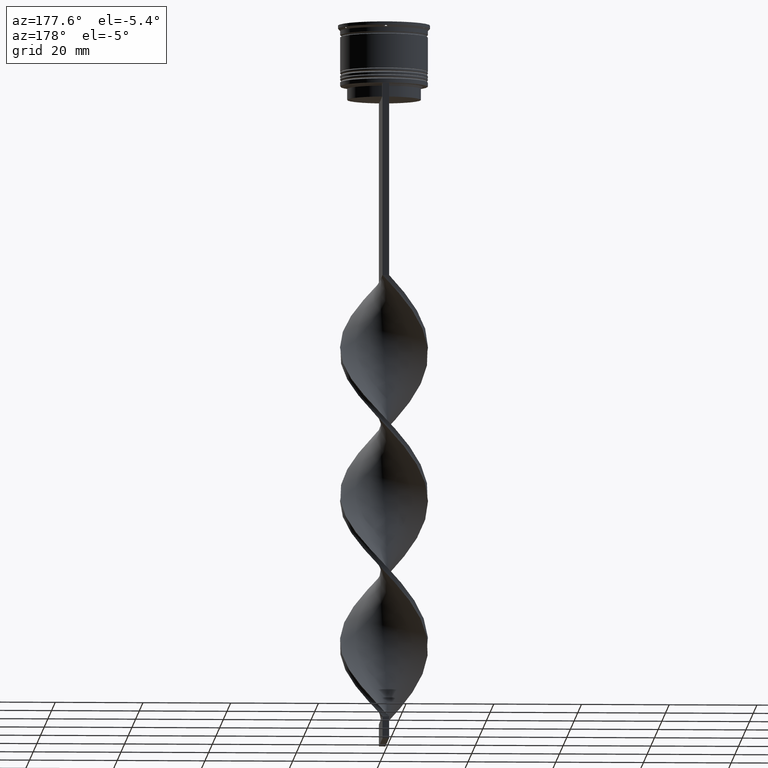
[diagram: clean part render]
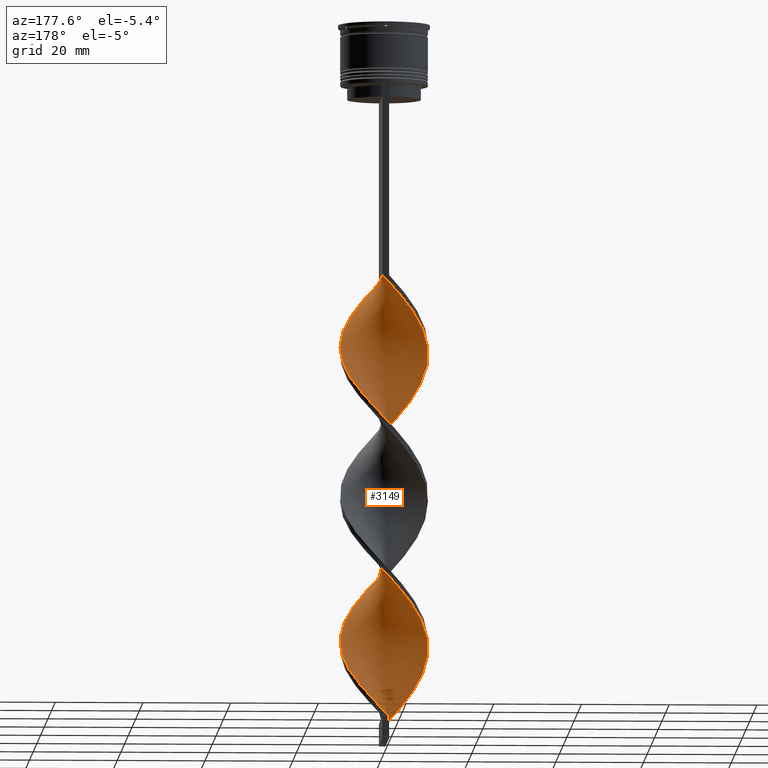
[diagram: same view with one face highlighted and labeled with its STEP entity id]
A machine part, auxiliary view. The second image highlights one B-rep face of the part: STEP entity #3149.
In plain terms, the highlighted face is a freeform B-spline surface patch.
Its self-contained STEP definition (entity closure, byte-faithful):
#4 = CARTESIAN_POINT ( 'NONE',  ( -7.288592354231109738, 6.967770475720659107, -99.52222222222223991 ) ) ;
#5 = CARTESIAN_POINT ( 'NONE',  ( 7.691465658176944054, -6.520334342467822175, -101.7666666666666515 ) ) ;
#23 = EDGE_CURVE ( 'NONE', #478, #2173, #455, .T. ) ;
#24 = CARTESIAN_POINT ( 'NONE',  ( -10.02361530113348032, 0.2993932111503379012, -107.3777777777777942 ) ) ;
#25 = CARTESIAN_POINT ( 'NONE',  ( -9.492508010833708099, -3.400837481082919389, -146.6555555555555657 ) ) ;
#43 = CARTESIAN_POINT ( 'NONE',  ( -9.678562416828830450, -2.828220898732835220, -110.7444444444444542 ) ) ;
#44 = CARTESIAN_POINT ( 'NONE',  ( -5.680638183180776402, -8.330891533339581656, -86.05555555555557135 ) ) ;
#59 = CARTESIAN_POINT ( 'NONE',  ( 9.278802417170330941, 3.803462330970840632, -78.20000000000000284 ) ) ;
#60 = CARTESIAN_POINT ( 'NONE',  ( 8.578000064855064721, 5.300124413240417276, -115.2333333333333343 ) ) ;
#79 = CARTESIAN_POINT ( 'NONE',  ( -8.285254037844383745, 5.649519052838329891, -69.22222222222222854 ) ) ;
#84 = CARTESIAN_POINT ( 'NONE',  ( 3.382207337526056179, 9.440507058732862333, -87.17777777777779136 ) ) ;
#85 = CARTESIAN_POINT ( 'NONE',  ( 7.933296209543089006, -6.133947444480539524, -66.97777777777777430 ) ) ;
#106 = CARTESIAN_POINT ( 'NONE',  ( 9.278802417170323835, -3.803462330970840632, -105.1333333333333400 ) ) ;
#110 = CARTESIAN_POINT ( 'NONE',  ( 10.05508279563516716, 0.7541312096726368042, -74.83333333333334281 ) ) ;
#122 = CARTESIAN_POINT ( 'NONE',  ( 9.992147806631788143, -1.352917631973299173, -139.9222222222222172 ) ) ;
#126 = CARTESIAN_POINT ( 'NONE',  ( -9.866822606231991699, 1.791176054202741952, -73.71111111111112280 ) ) ;
#129 = CARTESIAN_POINT ( 'NONE',  ( -4.752525523989953982, -8.830402094119154555, -154.5111111111111200 ) ) ;
#145 = CARTESIAN_POINT ( 'NONE',  ( -1.801042352656767154, -9.921171823550741564, -90.54444444444445139 ) ) ;
#151 = CARTESIAN_POINT ( 'NONE',  ( 9.035254037844390851, -4.350480947161673662, -69.22222222222222854 ) ) ;
#171 = CARTESIAN_POINT ( 'NONE',  ( 2.812727608727948247, -9.625542239224740726, -127.5777777777777828 ) ) ;
#194 = CARTESIAN_POINT ( 'NONE',  ( -0.3010423526567642116, 10.07882817644925666, -59.12222222222222712 ) ) ;
#226 = CARTESIAN_POINT ( 'NONE',  ( 8.285254037844390851, 5.649519052838329891, -80.44444444444445708 ) ) ;
#239 = CARTESIAN_POINT ( 'NONE',  ( -8.578000064855064721, -5.300124413240419052, -148.8999999999999773 ) ) ;
#251 = CARTESIAN_POINT ( 'NONE',  ( 5.271089777143525446, 8.531008882968833973, -152.2666666666666799 ) ) ;
#266 = CARTESIAN_POINT ( 'NONE',  ( 7.691465658176951159, 6.520334342467823951, -148.8999999999999773 ) ) ;
#273 = CARTESIAN_POINT ( 'NONE',  ( -8.879042417511827878, 4.778703763208838495, -137.6777777777777487 ) ) ;
#277 = CARTESIAN_POINT ( 'NONE',  ( 9.866822606231998805, 1.791176054202738843, -143.2888888888889198 ) ) ;
#280 = VECTOR ( 'NONE', #3236, 1000.000000000000000 ) ;
#286 = CARTESIAN_POINT ( 'NONE',  ( 2.812727608727952688, 9.625542239224735397, -123.0888888888888886 ) ) ;
#287 = CARTESIAN_POINT ( 'NONE',  ( 3.382207337526056179, 9.440507058732862333, -154.5111111111111200 ) ) ;
#292 = CARTESIAN_POINT ( 'NONE',  ( 9.742327908732745456, 2.376877556528106172, -111.8666666666666742 ) ) ;
#294 = CARTESIAN_POINT ( 'NONE',  ( 7.288592354231111514, -6.967770475720657330, -133.1888888888889255 ) ) ;
#299 = CARTESIAN_POINT ( 'NONE',  ( -9.992147806631788143, 1.352917631973302282, -106.2555555555555742 ) ) ;
#300 = CARTESIAN_POINT ( 'NONE',  ( -8.879042417511827878, 4.778703763208837607, -137.6777777777777487 ) ) ;
#308 = CARTESIAN_POINT ( 'NONE',  ( -1.801042352656767154, -9.921171823550741564, -157.8777777777777942 ) ) ;
#312 = CARTESIAN_POINT ( 'NONE',  ( 8.578000064855068274, -5.300124413240424381, -135.4333333333333371 ) ) ;
#322 = CARTESIAN_POINT ( 'NONE',  ( -6.484615268705943514, 7.649331004530123934, -98.40000000000001990 ) ) ;
#323 = CARTESIAN_POINT ( 'NONE',  ( -7.288592354231108850, -6.967770475720650225, -83.81111111111111711 ) ) ;
#344 = CARTESIAN_POINT ( 'NONE',  ( 5.271089777143518340, -8.531008882968828644, -98.40000000000001990 ) ) ;
#346 = CARTESIAN_POINT ( 'NONE',  ( -0.7499999999999997780, 3.333333333333337478, -159.0000000000000000 ) ) ;
#363 = CARTESIAN_POINT ( 'NONE',  ( 8.879042417511834984, 4.778703763208838495, -79.32222222222222285 ) ) ;
#364 = CARTESIAN_POINT ( 'NONE',  ( 7.933296209543087230, 6.133947444480531530, -116.3555555555555685 ) ) ;
#380 = CARTESIAN_POINT ( 'NONE',  ( -4.374444612454386316, 9.085022743012224566, -63.61111111111112137 ) ) ;
#384 = CARTESIAN_POINT ( 'NONE',  ( -5.680638183180775513, 8.330891533339592314, -97.27777777777778567 ) ) ;
#393 = EDGE_CURVE ( 'NONE', #2173, #2651, #1023, .T. ) ;
#401 = CARTESIAN_POINT ( 'NONE',  ( 6.929600300004795876, -7.248664682696629669, -100.6444444444444599 ) ) ;
#405 = CARTESIAN_POINT ( 'NONE',  ( -6.167734941832660134, -7.976995022925430945, -117.4777777777777885 ) ) ;
#428 = CARTESIAN_POINT ( 'NONE',  ( -0.7500000000000013323, -9.999999999999998224, -159.0000000000000000 ) ) ;
#443 = CARTESIAN_POINT ( 'NONE',  ( 4.374444612454384540, -9.085022743012224566, -97.27777777777779988 ) ) ;
#448 = CARTESIAN_POINT ( 'NONE',  ( 8.578000064855068274, -5.300124413240424381, -68.10000000000002274 ) ) ;
#455 = LINE ( 'NONE', #1058, #280 ) ;
#464 = CARTESIAN_POINT ( 'NONE',  ( -2.389970062597713163, 9.795991374453491218, -61.36666666666666003 ) ) ;
#469 = CARTESIAN_POINT ( 'NONE',  ( 3.824412864799132006, -9.329912654898736335, -61.36666666666666003 ) ) ;
#478 = VERTEX_POINT ( 'NONE', #3080 ) ;
#484 = CARTESIAN_POINT ( 'NONE',  ( -6.929600300004805646, -7.248664682696627892, -116.3555555555555685 ) ) ;
#527 = CARTESIAN_POINT ( 'NONE',  ( -9.866822606231991699, 1.791176054202741730, -73.71111111111112280 ) ) ;
#569 = CARTESIAN_POINT ( 'NONE',  ( -7.691465658176951159, -6.520334342467823063, -115.2333333333333343 ) ) ;
#571 = CARTESIAN_POINT ( 'NONE',  ( 3.824412864799132006, -9.329912654898734559, -61.36666666666666003 ) ) ;
#576 = CARTESIAN_POINT ( 'NONE',  ( 9.866822606231989923, -1.791176054202747503, -107.3777777777777942 ) ) ;
#580 = CARTESIAN_POINT ( 'NONE',  ( 7.691465658176951159, 6.520334342467823951, -148.8999999999999488 ) ) ;
#591 = ORIENTED_EDGE ( 'NONE', *, *, #393, .F. ) ;
#594 = CARTESIAN_POINT ( 'NONE',  ( -7.691465658176945830, 6.520334342467821287, -135.4333333333333371 ) ) ;
#597 = CARTESIAN_POINT ( 'NONE',  ( -0.7499999999999988898, 10.00000000000000533, -159.0000000000000000 ) ) ;
#606 = CARTESIAN_POINT ( 'NONE',  ( 9.492508010833709875, 3.400837481082915836, -112.9888888888888943 ) ) ;
#608 = CARTESIAN_POINT ( 'NONE',  ( 4.374444612454394310, 9.085022743012228119, -153.3888888888889142 ) ) ;
#618 = CARTESIAN_POINT ( 'NONE',  ( 3.382207337526056179, 9.440507058732862333, -154.5111111111111200 ) ) ;
#626 = CARTESIAN_POINT ( 'NONE',  ( 0.3010423526567678754, 10.07882817644926376, -90.54444444444445139 ) ) ;
#627 = CARTESIAN_POINT ( 'NONE',  ( 9.035254037844389075, 4.350480947161663003, -114.1111111111111285 ) ) ;
#637 = EDGE_CURVE ( 'NONE', #478, #1130, #3046, .T. ) ;
#648 = CARTESIAN_POINT ( 'NONE',  ( 6.929600300004804758, 7.248664682696628780, -82.68888888888889710 ) ) ;
#649 = CARTESIAN_POINT ( 'NONE',  ( -0.7500000000000013323, -9.999999999999998224, -91.66666666666667140 ) ) ;
#650 = CARTESIAN_POINT ( 'NONE',  ( -0.7500000000000014433, -9.999999999999998224, -159.0000000000000000 ) ) ;
#673 = CARTESIAN_POINT ( 'NONE',  ( -6.484615268705941737, -7.649331004530116829, -84.93333333333333712 ) ) ;
#691 = CARTESIAN_POINT ( 'NONE',  ( -0.7500000000000014433, -9.999999999999998224, -91.66666666666667140 ) ) ;
#695 = CARTESIAN_POINT ( 'NONE',  ( 10.02361530113347143, 0.2993932111503245785, -109.6222222222222342 ) ) ;
#710 = CARTESIAN_POINT ( 'NONE',  ( 2.389970062597711831, -9.795991374453492995, -95.03333333333331723 ) ) ;
#713 = CARTESIAN_POINT ( 'NONE',  ( -7.691465658176951159, -6.520334342467823063, -115.2333333333333343 ) ) ;
#734 = CARTESIAN_POINT ( 'NONE',  ( -9.492508010833709875, 3.400837481082930491, -104.0111111111111200 ) ) ;
#754 = CARTESIAN_POINT ( 'NONE',  ( -6.484615268705941737, -7.649331004530116829, -84.93333333333333712 ) ) ;
#757 = CARTESIAN_POINT ( 'NONE',  ( 1.345506207627244155, 9.937409775451381932, -89.42222222222223138 ) ) ;
#775 = CARTESIAN_POINT ( 'NONE',  ( -10.05508279563516716, -0.7541312096726356939, -108.5000000000000000 ) ) ;
#812 = EDGE_CURVE ( 'NONE', #2651, #1130, #2743, .T. ) ;
#817 = CARTESIAN_POINT ( 'NONE',  ( -1.345506207627238604, 9.937409775451374827, -60.24444444444444713 ) ) ;
#826 = CARTESIAN_POINT ( 'NONE',  ( -2.389970062597717604, -9.795991374453498324, -121.9666666666666544 ) ) ;
#832 = CARTESIAN_POINT ( 'NONE',  ( 0.7500000000000002220, 9.999999999999998224, -58.00000000000000000 ) ) ;
#839 = CARTESIAN_POINT ( 'NONE',  ( 6.484615268705942626, 7.649331004530116829, -118.6000000000000085 ) ) ;
#844 = CARTESIAN_POINT ( 'NONE',  ( 10.05508279563516716, 0.7541312096726368042, -142.1666666666666856 ) ) ;
#877 = CARTESIAN_POINT ( 'NONE',  ( 0.7500000000000001110, -10.00000000000000533, -58.00000000000000000 ) ) ;
#906 = CARTESIAN_POINT ( 'NONE',  ( -8.285254037844383745, 5.649519052838329891, -136.5555555555555713 ) ) ;
#908 = CARTESIAN_POINT ( 'NONE',  ( 9.678562416828828674, 2.828220898732840993, -144.4111111111111256 ) ) ;
#914 = CARTESIAN_POINT ( 'NONE',  ( 10.05508279563516005, -0.7541312096726393577, -108.5000000000000000 ) ) ;
#927 = CARTESIAN_POINT ( 'NONE',  ( 6.167734941832656581, 7.976995022925434498, -83.81111111111111711 ) ) ;
#928 = CARTESIAN_POINT ( 'NONE',  ( 5.680638183180778178, 8.330891533339581656, -119.7222222222222143 ) ) ;
#946 = CARTESIAN_POINT ( 'NONE',  ( 8.285254037844390851, 5.649519052838329891, -80.44444444444445708 ) ) ;
#947 = CARTESIAN_POINT ( 'NONE',  ( -8.578000064855064721, -5.300124413240419052, -148.8999999999999488 ) ) ;
#963 = CARTESIAN_POINT ( 'NONE',  ( -8.578000064855068274, 5.300124413240425270, -101.7666666666666515 ) ) ;
#964 = CARTESIAN_POINT ( 'NONE',  ( -2.812727608727951356, -9.625542239224735397, -89.42222222222223138 ) ) ;
#988 = CARTESIAN_POINT ( 'NONE',  ( -1.345506207627238604, 9.937409775451374827, -127.5777777777777828 ) ) ;
#1006 = CARTESIAN_POINT ( 'NONE',  ( -10.05508279563516005, 0.7541312096726382475, -74.83333333333332860 ) ) ;
#1009 = CARTESIAN_POINT ( 'NONE',  ( -8.879042417511836760, -4.778703763208835831, -112.9888888888888943 ) ) ;
#1010 = CARTESIAN_POINT ( 'NONE',  ( 9.035254037844390851, -4.350480947161673662, -69.22222222222222854 ) ) ;
#1023 =( BOUNDED_CURVE ( )  B_SPLINE_CURVE ( 2, ( #1931, #3788, #3468, #464, #1044, #380, #3725, #1589, #2608, #3156, #79, #1630, #2566, #1671, #126, #1006, #1356, #2903, #2548, #3742, #2220, #3854, #1299, #2239, #754, #1951, #3404, #1065, #3173, #145, #691, #3109, #3422, #710, #3131, #443, #1648, #2883, #401, #2283, #1613, #2847, #106, #1320, #576, #914, #1153, #2746, #292, #1481, #3257, #2712, #1133, #3577, #839, #3913, #2374, #3873, #1758, #3278, #3927, #2972, #2124, #1207, #1814, #3612, #2103, #3310, #2065, #594, #1497, #273, #1190, #3333, #2044, #2354, #1460, #1795, #2673, #2693, #2726, #239, #3003, #3598, #2400, #3629, #3020, #3037, #1447, #308, #1515 ),
 .UNSPECIFIED., .F., .T. ) 
 B_SPLINE_CURVE_WITH_KNOTS ( ( 3, 2, 2, 2, 2, 2, 2, 2, 2, 2, 2, 2, 2, 2, 2, 2, 2, 2, 2, 2, 2, 2, 2, 2, 2, 2, 2, 2, 2, 2, 2, 2, 2, 2, 2, 2, 2, 2, 2, 2, 2, 2, 2, 2, 2, 3 ),
 ( 0.000000000000000000, 0.01666666666666666644, 0.03333333333333333287, 0.05000000000000000971, 0.06666666666666666574, 0.08333333333333332871, 0.1000000000000000194, 0.1166666666666666546, 0.1333333333333333315, 0.1499999999999999944, 0.1666666666666666574, 0.1833333333333333204, 0.2000000000000000389, 0.2166666666666666741, 0.2333333333333333093, 0.2500000000000000000, 0.2666666666666666630, 0.2833333333333333259, 0.2999999999999999889, 0.3166666666666666519, 0.3333333333333333148, 0.3499999999999999223, 0.3666666666666666408, 0.3833333333333333592, 0.4000000000000000777, 0.4166666666666666852, 0.4333333333333333481, 0.4500000000000000111, 0.4666666666666666186, 0.4833333333333333370, 0.5000000000000000000, 0.5166666666666667185, 0.5333333333333333259, 0.5500000000000000444, 0.5666666666666666519, 0.5833333333333333703, 0.5999999999999999778, 0.6166666666666666963, 0.6333333333333333037, 0.6500000000000000222, 0.6666666666666666297, 0.6833333333333332371, 0.6999999999999998446, 0.7166666666666666741, 0.7333333333333332815, 0.7500000000000000000 ),
 .UNSPECIFIED. ) 
 CURVE ( )  GEOMETRIC_REPRESENTATION_ITEM ( )  RATIONAL_B_SPLINE_CURVE ( ( 1.000000000000000000, 0.9945218953682732899, 1.000000000000000000, 0.9945218953682732899, 1.000000000000000000, 0.9945218953682732899, 1.000000000000000000, 0.9945218953682732899, 1.000000000000000000, 0.9945218953682732899, 1.000000000000000000, 0.9945218953682732899, 1.000000000000000000, 0.9945218953682732899, 1.000000000000000000, 0.9945218953682732899, 1.000000000000000000, 0.9945218953682732899, 1.000000000000000000, 0.9945218953682732899, 1.000000000000000000, 0.9945218953682732899, 1.000000000000000000, 0.9945218953682732899, 1.000000000000000000, 0.9945218953682732899, 1.000000000000000000, 0.9945218953682732899, 1.000000000000000000, 0.9945218953682732899, 1.000000000000000000, 0.9945218953682732899, 1.000000000000000000, 0.9945218953682732899, 1.000000000000000000, 0.9945218953682732899, 1.000000000000000000, 0.9945218953682732899, 1.000000000000000000, 0.9945218953682732899, 1.000000000000000000, 0.9945218953682732899, 1.000000000000000000, 0.9945218953682732899, 1.000000000000000000, 0.9945218953682732899, 1.000000000000000000, 0.9945218953682732899, 1.000000000000000000, 0.9945218953682732899, 1.000000000000000000, 0.9945218953682732899, 1.000000000000000000, 0.9945218953682732899, 1.000000000000000000, 0.9945218953682732899, 1.000000000000000000, 0.9945218953682732899, 1.000000000000000000, 0.9945218953682732899, 1.000000000000000000, 0.9945218953682732899, 1.000000000000000000, 0.9945218953682732899, 1.000000000000000000, 0.9945218953682732899, 1.000000000000000000, 0.9945218953682732899, 1.000000000000000000, 0.9945218953682732899, 1.000000000000000000, 0.9945218953682732899, 1.000000000000000000, 0.9945218953682732899, 1.000000000000000000, 0.9945218953682732899, 1.000000000000000000, 0.9945218953682732899, 1.000000000000000000, 0.9945218953682732899, 1.000000000000000000, 0.9945218953682732899, 1.000000000000000000, 0.9945218953682732899, 1.000000000000000000, 0.9945218953682732899, 1.000000000000000000, 0.9945218953682732899, 1.000000000000000000, 0.9945218953682732899, 1.000000000000000000 ) ) 
 REPRESENTATION_ITEM ( '' )  );
#1029 = CARTESIAN_POINT ( 'NONE',  ( -4.374444612454396086, -9.085022743012226343, -119.7222222222222143 ) ) ;
#1044 = CARTESIAN_POINT ( 'NONE',  ( -3.382207337526049518, 9.440507058732857004, -62.48888888888889426 ) ) ;
#1049 = CARTESIAN_POINT ( 'NONE',  ( -2.812727608727946027, 9.625542239224740726, -93.91111111111111143 ) ) ;
#1058 = CARTESIAN_POINT ( 'NONE',  ( 0.7500000000000001110, -10.00000000000000533, -58.00000000000000000 ) ) ;
#1065 = CARTESIAN_POINT ( 'NONE',  ( -3.824412864799130674, -9.329912654898727453, -88.29999999999998295 ) ) ;
#1068 = CARTESIAN_POINT ( 'NONE',  ( -1.801042352656766932, -9.921171823550739788, -157.8777777777777942 ) ) ;
#1108 = CARTESIAN_POINT ( 'NONE',  ( -9.678562416828818016, 2.828220898732842770, -72.58888888888890278 ) ) ;
#1130 = VERTEX_POINT ( 'NONE', #1363 ) ;
#1133 = CARTESIAN_POINT ( 'NONE',  ( 7.933296209543087230, 6.133947444480531530, -116.3555555555555685 ) ) ;
#1136 = CARTESIAN_POINT ( 'NONE',  ( 9.992147806631789919, -1.352917631973299173, -72.58888888888890278 ) ) ;
#1144 = CARTESIAN_POINT ( 'NONE',  ( -8.285254037844394404, -5.649519052838325450, -114.1111111111111285 ) ) ;
#1145 = CARTESIAN_POINT ( 'NONE',  ( -9.492508010833708099, -3.400837481082919389, -79.32222222222222285 ) ) ;
#1153 = CARTESIAN_POINT ( 'NONE',  ( 10.02361530113347143, 0.2993932111503244675, -109.6222222222222342 ) ) ;
#1156 = CARTESIAN_POINT ( 'NONE',  ( 2.812727608727948247, -9.625542239224740726, -127.5777777777777828 ) ) ;
#1178 = CARTESIAN_POINT ( 'NONE',  ( 9.992147806631789919, -1.352917631973299173, -139.9222222222222172 ) ) ;
#1184 = CARTESIAN_POINT ( 'NONE',  ( -4.374444612454386316, 9.085022743012224566, -63.61111111111111427 ) ) ;
#1190 = CARTESIAN_POINT ( 'NONE',  ( -9.278802417170323835, 3.803462330970839744, -138.8000000000000114 ) ) ;
#1193 = CARTESIAN_POINT ( 'NONE',  ( 8.879042417511834984, 4.778703763208838495, -146.6555555555555657 ) ) ;
#1194 = CARTESIAN_POINT ( 'NONE',  ( 9.492508010833715204, -3.400837481082924718, -137.6777777777777487 ) ) ;
#1200 = CARTESIAN_POINT ( 'NONE',  ( -6.167734941832649476, 7.976995022925432721, -133.1888888888889255 ) ) ;
#1202 = CARTESIAN_POINT ( 'NONE',  ( 9.866822606231998805, 1.791176054202738843, -143.2888888888889198 ) ) ;
#1207 = CARTESIAN_POINT ( 'NONE',  ( -2.389970062597713163, 9.795991374453491218, -128.7000000000000171 ) ) ;
#1219 = CARTESIAN_POINT ( 'NONE',  ( 4.752525523989958423, 8.830402094119152778, -120.8444444444444485 ) ) ;
#1223 = ORIENTED_EDGE ( 'NONE', *, *, #23, .F. ) ;
#1233 = CARTESIAN_POINT ( 'NONE',  ( 5.680638183180777290, -8.330891533339590538, -130.9444444444444287 ) ) ;
#1244 = CARTESIAN_POINT ( 'NONE',  ( -7.691465658176945830, 6.520334342467821287, -135.4333333333333371 ) ) ;
#1260 = CARTESIAN_POINT ( 'NONE',  ( -9.278802417170330941, -3.803462330970838856, -111.8666666666666742 ) ) ;
#1261 = CARTESIAN_POINT ( 'NONE',  ( 6.167734941832646811, -7.976995022925432721, -99.52222222222223991 ) ) ;
#1278 = CARTESIAN_POINT ( 'NONE',  ( -9.742327908732750785, 2.376877556528111946, -105.1333333333333400 ) ) ;
#1279 = CARTESIAN_POINT ( 'NONE',  ( 9.866822606231989923, -1.791176054202747281, -107.3777777777777942 ) ) ;
#1299 = CARTESIAN_POINT ( 'NONE',  ( -7.933296209543087230, -6.133947444480532418, -82.68888888888889710 ) ) ;
#1303 = CARTESIAN_POINT ( 'NONE',  ( 6.167734941832655693, 7.976995022925434498, -83.81111111111111711 ) ) ;
#1305 = CARTESIAN_POINT ( 'NONE',  ( 8.578000064855070050, -5.300124413240424381, -68.10000000000000853 ) ) ;
#1320 = CARTESIAN_POINT ( 'NONE',  ( 9.678562416828818016, -2.828220898732846322, -106.2555555555555742 ) ) ;
#1324 = CARTESIAN_POINT ( 'NONE',  ( 6.929600300004804758, 7.248664682696628780, -82.68888888888889710 ) ) ;
#1341 = CARTESIAN_POINT ( 'NONE',  ( -5.680638183180776402, -8.330891533339581656, -153.3888888888889142 ) ) ;
#1342 = CARTESIAN_POINT ( 'NONE',  ( -0.7499999999999988898, 10.00000000000000533, -159.0000000000000000 ) ) ;
#1356 = CARTESIAN_POINT ( 'NONE',  ( -10.02361530113347143, -0.2993932111503279092, -75.95555555555554861 ) ) ;
#1362 = CARTESIAN_POINT ( 'NONE',  ( 9.678562416828826898, 2.828220898732840549, -77.07777777777778283 ) ) ;
#1363 = CARTESIAN_POINT ( 'NONE',  ( -0.7499999999999988898, 10.00000000000000533, -159.0000000000000000 ) ) ;
#1380 = CARTESIAN_POINT ( 'NONE',  ( 5.680638183180777290, -8.330891533339590538, -130.9444444444444571 ) ) ;
#1413 = CARTESIAN_POINT ( 'NONE',  ( 4.752525523989954870, -8.830402094119163436, -129.8222222222222229 ) ) ;
#1434 = CARTESIAN_POINT ( 'NONE',  ( 9.278802417170330941, 3.803462330970840632, -78.20000000000000284 ) ) ;
#1442 = CARTESIAN_POINT ( 'NONE',  ( -8.879042417511827878, 4.778703763208837607, -70.34444444444443434 ) ) ;
#1447 = CARTESIAN_POINT ( 'NONE',  ( -2.812727608727951356, -9.625542239224735397, -156.7555555555555600 ) ) ;
#1460 = CARTESIAN_POINT ( 'NONE',  ( -10.02361530113347143, -0.2993932111503279092, -143.2888888888889198 ) ) ;
#1481 = CARTESIAN_POINT ( 'NONE',  ( 9.492508010833711651, 3.400837481082915392, -112.9888888888888943 ) ) ;
#1484 = CARTESIAN_POINT ( 'NONE',  ( 9.678562416828826898, 2.828220898732840549, -144.4111111111111541 ) ) ;
#1490 = CARTESIAN_POINT ( 'NONE',  ( -4.374444612454386316, 9.085022743012224566, -130.9444444444444287 ) ) ;
#1497 = CARTESIAN_POINT ( 'NONE',  ( -8.285254037844383745, 5.649519052838329891, -136.5555555555555713 ) ) ;
#1500 = CARTESIAN_POINT ( 'NONE',  ( 9.742327908732750785, -2.376877556528111057, -138.8000000000000114 ) ) ;
#1508 = CARTESIAN_POINT ( 'NONE',  ( -9.678562416828818016, 2.828220898732842770, -139.9222222222222172 ) ) ;
#1515 = CARTESIAN_POINT ( 'NONE',  ( -0.7500000000000014433, -9.999999999999998224, -159.0000000000000000 ) ) ;
#1518 = CARTESIAN_POINT ( 'NONE',  ( 3.824412864799132006, -9.329912654898736335, -128.6999999999999886 ) ) ;
#1528 = CARTESIAN_POINT ( 'NONE',  ( -9.035254037844390851, 4.350480947161678102, -102.8888888888888857 ) ) ;
#1529 = CARTESIAN_POINT ( 'NONE',  ( -7.933296209543087230, -6.133947444480532418, -82.68888888888889710 ) ) ;
#1553 = CARTESIAN_POINT ( 'NONE',  ( 5.271089777143525446, 8.531008882968833973, -84.93333333333333712 ) ) ;
#1554 = CARTESIAN_POINT ( 'NONE',  ( 6.929600300004795876, -7.248664682696628780, -100.6444444444444599 ) ) ;
#1555 = CARTESIAN_POINT ( 'NONE',  ( 9.742327908732750785, -2.376877556528111057, -71.46666666666668277 ) ) ;
#1572 = CARTESIAN_POINT ( 'NONE',  ( -2.812727608727946027, 9.625542239224740726, -93.91111111111111143 ) ) ;
#1573 = CARTESIAN_POINT ( 'NONE',  ( -0.3010423526567642116, 10.07882817644925666, -126.4555555555555628 ) ) ;
#1574 = CARTESIAN_POINT ( 'NONE',  ( 10.05508279563516716, 0.7541312096726368042, -74.83333333333332860 ) ) ;
#1587 = CARTESIAN_POINT ( 'NONE',  ( 8.578000064855070050, -5.300124413240424381, -135.4333333333333371 ) ) ;
#1589 = CARTESIAN_POINT ( 'NONE',  ( -6.167734941832649476, 7.976995022925432721, -65.85555555555555429 ) ) ;
#1593 = CARTESIAN_POINT ( 'NONE',  ( -6.484615268705943514, 7.649331004530123934, -98.40000000000001990 ) ) ;
#1613 = CARTESIAN_POINT ( 'NONE',  ( 8.285254037844381969, -5.649519052838333444, -102.8888888888888857 ) ) ;
#1617 = CARTESIAN_POINT ( 'NONE',  ( -5.271089777143526334, -8.531008882968833973, -118.6000000000000085 ) ) ;
#1630 = CARTESIAN_POINT ( 'NONE',  ( -8.879042417511827878, 4.778703763208838495, -70.34444444444444855 ) ) ;
#1634 = CARTESIAN_POINT ( 'NONE',  ( 0.7500000000000001110, -10.00000000000000533, -58.00000000000000000 ) ) ;
#1648 = CARTESIAN_POINT ( 'NONE',  ( 5.271089777143518340, -8.531008882968830420, -98.40000000000001990 ) ) ;
#1652 = CARTESIAN_POINT ( 'NONE',  ( 5.680638183180777290, -8.330891533339590538, -63.61111111111111427 ) ) ;
#1668 = CARTESIAN_POINT ( 'NONE',  ( 0.7500000000000001110, -10.00000000000000533, -125.3333333333333570 ) ) ;
#1671 = CARTESIAN_POINT ( 'NONE',  ( -9.678562416828818016, 2.828220898732843214, -72.58888888888890278 ) ) ;
#1677 = CARTESIAN_POINT ( 'NONE',  ( 1.801042352656765155, -9.921171823550746893, -59.12222222222222712 ) ) ;
#1707 = CARTESIAN_POINT ( 'NONE',  ( -1.345506207627245487, -9.937409775451381932, -123.0888888888888886 ) ) ;
#1758 = CARTESIAN_POINT ( 'NONE',  ( 2.812727608727952688, 9.625542239224735397, -123.0888888888888886 ) ) ;
#1771 = CARTESIAN_POINT ( 'NONE',  ( 4.752525523989954870, -8.830402094119163436, -62.48888888888889426 ) ) ;
#1779 = CARTESIAN_POINT ( 'NONE',  ( 4.374444612454393422, 9.085022743012228119, -153.3888888888889142 ) ) ;
#1795 = CARTESIAN_POINT ( 'NONE',  ( -9.992147806631782814, -1.352917631973294288, -144.4111111111111256 ) ) ;
#1800 = CARTESIAN_POINT ( 'NONE',  ( 0.3010423526567679309, 10.07882817644926376, -157.8777777777777942 ) ) ;
#1805 = CARTESIAN_POINT ( 'NONE',  ( 0.7500000000000001110, 9.999999999999998224, -125.3333333333333570 ) ) ;
#1807 = CARTESIAN_POINT ( 'NONE',  ( 1.345506207627244155, 9.937409775451381932, -156.7555555555555600 ) ) ;
#1814 = CARTESIAN_POINT ( 'NONE',  ( -3.382207337526049518, 9.440507058732857004, -129.8222222222222229 ) ) ;
#1827 = CARTESIAN_POINT ( 'NONE',  ( -0.7499999999999988898, 10.00000000000000533, -91.66666666666667140 ) ) ;
#1828 = CARTESIAN_POINT ( 'NONE',  ( 7.288592354231113291, 6.967770475720644896, -117.4777777777777885 ) ) ;
#1847 = CARTESIAN_POINT ( 'NONE',  ( -3.824412864799130674, 9.329912654898736335, -95.03333333333331723 ) ) ;
#1848 = CARTESIAN_POINT ( 'NONE',  ( -7.933296209543087230, -6.133947444480532418, -150.0222222222222115 ) ) ;
#1871 = CARTESIAN_POINT ( 'NONE',  ( -9.492508010833711651, 3.400837481082930491, -104.0111111111111057 ) ) ;
#1872 = CARTESIAN_POINT ( 'NONE',  ( -4.752525523989953982, -8.830402094119154555, -87.17777777777779136 ) ) ;
#1873 = CARTESIAN_POINT ( 'NONE',  ( 6.484615268705944402, -7.649331004530123934, -64.73333333333333428 ) ) ;
#1886 = CARTESIAN_POINT ( 'NONE',  ( 7.288592354231111514, -6.967770475720657330, -133.1888888888889255 ) ) ;
#1892 = CARTESIAN_POINT ( 'NONE',  ( 5.271089777143525446, 8.531008882968833973, -84.93333333333333712 ) ) ;
#1911 = CARTESIAN_POINT ( 'NONE',  ( -6.929600300004805646, -7.248664682696627892, -116.3555555555555685 ) ) ;
#1912 = CARTESIAN_POINT ( 'NONE',  ( -0.7500000000000005551, -3.333333333333330373, -159.0000000000000000 ) ) ;
#1931 = CARTESIAN_POINT ( 'NONE',  ( 0.7500000000000002220, 9.999999999999998224, -58.00000000000000000 ) ) ;
#1935 = CARTESIAN_POINT ( 'NONE',  ( -10.02361530113348032, 0.2993932111503379012, -107.3777777777777942 ) ) ;
#1951 = CARTESIAN_POINT ( 'NONE',  ( -5.680638183180776402, -8.330891533339583432, -86.05555555555557135 ) ) ;
#1956 = CARTESIAN_POINT ( 'NONE',  ( 0.3010423526567679309, 10.07882817644926376, -90.54444444444445139 ) ) ;
#1978 = CARTESIAN_POINT ( 'NONE',  ( -9.992147806631789919, 1.352917631973302282, -106.2555555555555742 ) ) ;
#2022 = CARTESIAN_POINT ( 'NONE',  ( -10.05508279563516005, 0.7541312096726381364, -74.83333333333334281 ) ) ;
#2031 = CARTESIAN_POINT ( 'NONE',  ( -5.271089777143526334, -8.531008882968833973, -118.6000000000000085 ) ) ;
#2037 = CARTESIAN_POINT ( 'NONE',  ( -8.285254037844383745, 5.649519052838329891, -69.22222222222222854 ) ) ;
#2044 = CARTESIAN_POINT ( 'NONE',  ( -9.866822606231991699, 1.791176054202741952, -141.0444444444444514 ) ) ;
#2065 = CARTESIAN_POINT ( 'NONE',  ( -6.929600300004796765, 7.248664682696627892, -134.3111111111111313 ) ) ;
#2070 = CARTESIAN_POINT ( 'NONE',  ( 2.389970062597715827, 9.795991374453498324, -155.6333333333333258 ) ) ;
#2079 = CARTESIAN_POINT ( 'NONE',  ( 1.801042352656765155, -9.921171823550748670, -59.12222222222222712 ) ) ;
#2103 = CARTESIAN_POINT ( 'NONE',  ( -5.271089777143520116, 8.531008882968830420, -132.0666666666666629 ) ) ;
#2106 = CARTESIAN_POINT ( 'NONE',  ( -0.3010423526567735375, -10.07882817644926376, -124.2111111111111370 ) ) ;
#2114 = CARTESIAN_POINT ( 'NONE',  ( -9.278802417170323835, 3.803462330970839300, -138.8000000000000114 ) ) ;
#2116 = CARTESIAN_POINT ( 'NONE',  ( 8.285254037844390851, 5.649519052838329891, -147.7777777777777715 ) ) ;
#2124 = CARTESIAN_POINT ( 'NONE',  ( -1.345506207627238382, 9.937409775451374827, -127.5777777777777828 ) ) ;
#2128 = CARTESIAN_POINT ( 'NONE',  ( 5.271089777143525446, 8.531008882968833973, -152.2666666666666799 ) ) ;
#2135 = CARTESIAN_POINT ( 'NONE',  ( 9.866822606231998805, 1.791176054202738843, -75.95555555555554861 ) ) ;
#2136 = CARTESIAN_POINT ( 'NONE',  ( -5.271089777143520116, 8.531008882968830420, -132.0666666666666629 ) ) ;
#2138 = CARTESIAN_POINT ( 'NONE',  ( 2.389970062597715827, 9.795991374453498324, -155.6333333333333542 ) ) ;
#2157 = CARTESIAN_POINT ( 'NONE',  ( 7.691465658176951159, 6.520334342467823951, -81.56666666666666288 ) ) ;
#2158 = CARTESIAN_POINT ( 'NONE',  ( 9.278802417170323835, -3.803462330970840188, -105.1333333333333400 ) ) ;
#2173 = VERTEX_POINT ( 'NONE', #832 ) ;
#2178 = CARTESIAN_POINT ( 'NONE',  ( 1.345506207627244155, 9.937409775451381932, -89.42222222222223138 ) ) ;
#2179 = CARTESIAN_POINT ( 'NONE',  ( 8.879042417511824326, -4.778703763208842936, -104.0111111111111200 ) ) ;
#2205 = CARTESIAN_POINT ( 'NONE',  ( -3.382207337526049962, 9.440507058732857004, -129.8222222222222229 ) ) ;
#2220 = CARTESIAN_POINT ( 'NONE',  ( -9.035254037844387298, -4.350480947161667444, -80.44444444444445708 ) ) ;
#2224 = CARTESIAN_POINT ( 'NONE',  ( -8.285254037844394404, -5.649519052838325450, -114.1111111111111285 ) ) ;
#2239 = CARTESIAN_POINT ( 'NONE',  ( -7.288592354231108850, -6.967770475720649337, -83.81111111111111711 ) ) ;
#2242 = CARTESIAN_POINT ( 'NONE',  ( -3.382207337526060620, -9.440507058732860557, -120.8444444444444485 ) ) ;
#2264 = CARTESIAN_POINT ( 'NONE',  ( -2.812727608727951356, -9.625542239224735397, -156.7555555555555600 ) ) ;
#2279 = ORIENTED_EDGE ( 'NONE', *, *, #637, .T. ) ;
#2281 = CARTESIAN_POINT ( 'NONE',  ( 1.801042352656765155, -9.921171823550748670, -126.4555555555555770 ) ) ;
#2283 = CARTESIAN_POINT ( 'NONE',  ( 7.691465658176943165, -6.520334342467822175, -101.7666666666666515 ) ) ;
#2286 = CARTESIAN_POINT ( 'NONE',  ( 7.933296209543089006, -6.133947444480539524, -66.97777777777777430 ) ) ;
#2318 = CARTESIAN_POINT ( 'NONE',  ( -0.3010423526567735375, -10.07882817644926376, -124.2111111111111370 ) ) ;
#2348 = CARTESIAN_POINT ( 'NONE',  ( -2.389970062597713163, 9.795991374453491218, -61.36666666666666003 ) ) ;
#2354 = CARTESIAN_POINT ( 'NONE',  ( -10.05508279563516005, 0.7541312096726382475, -142.1666666666666856 ) ) ;
#2357 = CARTESIAN_POINT ( 'NONE',  ( -6.484615268705941737, -7.649331004530116829, -152.2666666666666799 ) ) ;
#2374 = CARTESIAN_POINT ( 'NONE',  ( 4.752525523989959311, 8.830402094119152778, -120.8444444444444485 ) ) ;
#2400 = CARTESIAN_POINT ( 'NONE',  ( -6.484615268705941737, -7.649331004530116829, -152.2666666666666799 ) ) ;
#2410 = CARTESIAN_POINT ( 'NONE',  ( -5.271089777143520116, 8.531008882968830420, -64.73333333333333428 ) ) ;
#2411 = CARTESIAN_POINT ( 'NONE',  ( 5.680638183180777290, -8.330891533339590538, -63.61111111111112137 ) ) ;
#2417 = CARTESIAN_POINT ( 'NONE',  ( 6.929600300004804758, 7.248664682696628780, -150.0222222222222115 ) ) ;
#2423 = CARTESIAN_POINT ( 'NONE',  ( -6.929600300004796765, 7.248664682696627892, -134.3111111111111313 ) ) ;
#2435 = CARTESIAN_POINT ( 'NONE',  ( 9.492508010833713428, -3.400837481082924718, -137.6777777777777487 ) ) ;
#2445 = CARTESIAN_POINT ( 'NONE',  ( -10.05508279563516005, 0.7541312096726381364, -142.1666666666666856 ) ) ;
#2459 = CARTESIAN_POINT ( 'NONE',  ( 7.933296209543089006, -6.133947444480539524, -134.3111111111111313 ) ) ;
#2466 = CARTESIAN_POINT ( 'NONE',  ( -8.578000064855064721, -5.300124413240419052, -81.56666666666664867 ) ) ;
#2483 = CARTESIAN_POINT ( 'NONE',  ( 2.389970062597715827, 9.795991374453498324, -88.29999999999998295 ) ) ;
#2484 = CARTESIAN_POINT ( 'NONE',  ( 8.285254037844381969, -5.649519052838332556, -102.8888888888888857 ) ) ;
#2505 = CARTESIAN_POINT ( 'NONE',  ( -10.05508279563516716, -0.7541312096726355829, -108.5000000000000000 ) ) ;
#2506 = CARTESIAN_POINT ( 'NONE',  ( 4.374444612454384540, -9.085022743012224566, -97.27777777777778567 ) ) ;
#2533 = CARTESIAN_POINT ( 'NONE',  ( -9.742327908732750785, 2.376877556528111946, -105.1333333333333400 ) ) ;
#2548 = CARTESIAN_POINT ( 'NONE',  ( -9.742327908732745456, -2.376877556528107505, -78.20000000000000284 ) ) ;
#2551 = CARTESIAN_POINT ( 'NONE',  ( -7.933296209543089006, 6.133947444480543076, -100.6444444444444599 ) ) ;
#2566 = CARTESIAN_POINT ( 'NONE',  ( -9.278802417170323835, 3.803462330970839744, -71.46666666666668277 ) ) ;
#2570 = CARTESIAN_POINT ( 'NONE',  ( -3.824412864799130674, -9.329912654898729230, -155.6333333333333258 ) ) ;
#2592 = CARTESIAN_POINT ( 'NONE',  ( -8.578000064855068274, 5.300124413240425270, -101.7666666666666515 ) ) ;
#2606 = CARTESIAN_POINT ( 'NONE',  ( 6.484615268705944402, -7.649331004530123934, -132.0666666666666629 ) ) ;
#2608 = CARTESIAN_POINT ( 'NONE',  ( -6.929600300004796765, 7.248664682696627892, -66.97777777777777430 ) ) ;
#2622 = CARTESIAN_POINT ( 'NONE',  ( -3.382207337526060620, -9.440507058732860557, -120.8444444444444485 ) ) ;
#2630 = CARTESIAN_POINT ( 'NONE',  ( 0.7500000000000001110, 9.999999999999998224, -58.00000000000000000 ) ) ;
#2651 = VERTEX_POINT ( 'NONE', #3575 ) ;
#2661 = CARTESIAN_POINT ( 'NONE',  ( 7.691465658176951159, 6.520334342467823951, -81.56666666666664867 ) ) ;
#2667 = CARTESIAN_POINT ( 'NONE',  ( -9.992147806631782814, -1.352917631973294510, -77.07777777777778283 ) ) ;
#2673 = CARTESIAN_POINT ( 'NONE',  ( -9.742327908732745456, -2.376877556528107505, -145.5333333333333599 ) ) ;
#2677 = CARTESIAN_POINT ( 'NONE',  ( 1.801042352656765155, -9.921171823550746893, -126.4555555555555628 ) ) ;
#2693 = CARTESIAN_POINT ( 'NONE',  ( -9.492508010833709875, -3.400837481082919389, -146.6555555555555657 ) ) ;
#2696 = CARTESIAN_POINT ( 'NONE',  ( -2.389970062597717604, -9.795991374453498324, -121.9666666666666544 ) ) ;
#2712 = CARTESIAN_POINT ( 'NONE',  ( 8.578000064855064721, 5.300124413240417276, -115.2333333333333343 ) ) ;
#2715 = CARTESIAN_POINT ( 'NONE',  ( 9.278802417170330941, 3.803462330970840632, -145.5333333333333599 ) ) ;
#2720 = CARTESIAN_POINT ( 'NONE',  ( 10.05508279563516005, -0.7541312096726393577, -108.5000000000000000 ) ) ;
#2722 = CARTESIAN_POINT ( 'NONE',  ( 10.05508279563516716, 0.7541312096726368042, -142.1666666666666856 ) ) ;
#2726 = CARTESIAN_POINT ( 'NONE',  ( -9.035254037844387298, -4.350480947161667444, -147.7777777777777715 ) ) ;
#2737 = CARTESIAN_POINT ( 'NONE',  ( -1.801042352656761381, 9.921171823550750446, -92.78888888888889142 ) ) ;
#2738 = CARTESIAN_POINT ( 'NONE',  ( -9.866822606231991699, 1.791176054202741730, -141.0444444444444514 ) ) ;
#2743 = B_SPLINE_CURVE_WITH_KNOTS ( 'NONE', 3,
 ( #650, #1912, #346, #1342 ),
 .UNSPECIFIED., .F., .F.,
 ( 4, 4 ),
 ( 0.000000000000000000, 1.000000000000000000 ),
 .UNSPECIFIED. ) ;
#2746 = CARTESIAN_POINT ( 'NONE',  ( 9.992147806631784590, 1.352917631973288071, -110.7444444444444542 ) ) ;
#2758 = CARTESIAN_POINT ( 'NONE',  ( -9.742327908732745456, -2.376877556528107949, -145.5333333333333599 ) ) ;
#2774 = EDGE_LOOP ( 'NONE', ( #1223, #2279, #3459, #591 ) ) ;
#2780 = CARTESIAN_POINT ( 'NONE',  ( -9.866822606231998805, -1.791176054202735513, -109.6222222222222342 ) ) ;
#2781 = CARTESIAN_POINT ( 'NONE',  ( 9.742327908732745456, 2.376877556528106172, -111.8666666666666742 ) ) ;
#2798 = CARTESIAN_POINT ( 'NONE',  ( -7.933296209543089006, 6.133947444480543076, -100.6444444444444599 ) ) ;
#2799 = CARTESIAN_POINT ( 'NONE',  ( 2.389970062597711831, -9.795991374453492995, -95.03333333333331723 ) ) ;
#2818 = CARTESIAN_POINT ( 'NONE',  ( 9.035254037844390851, -4.350480947161673662, -136.5555555555555713 ) ) ;
#2823 = CARTESIAN_POINT ( 'NONE',  ( -7.288592354231109738, 6.967770475720659107, -99.52222222222223991 ) ) ;
#2824 = CARTESIAN_POINT ( 'NONE',  ( 7.288592354231111514, -6.967770475720657330, -65.85555555555555429 ) ) ;
#2847 = CARTESIAN_POINT ( 'NONE',  ( 8.879042417511824326, -4.778703763208842936, -104.0111111111111057 ) ) ;
#2851 = CARTESIAN_POINT ( 'NONE',  ( -9.678562416828828674, -2.828220898732835220, -110.7444444444444542 ) ) ;
#2868 = CARTESIAN_POINT ( 'NONE',  ( 9.742327908732750785, -2.376877556528111057, -71.46666666666668277 ) ) ;
#2883 = CARTESIAN_POINT ( 'NONE',  ( 6.167734941832646811, -7.976995022925432721, -99.52222222222223991 ) ) ;
#2887 = CARTESIAN_POINT ( 'NONE',  ( 4.752525523989954870, -8.830402094119163436, -62.48888888888889426 ) ) ;
#2903 = CARTESIAN_POINT ( 'NONE',  ( -9.992147806631782814, -1.352917631973294288, -77.07777777777778283 ) ) ;
#2907 = CARTESIAN_POINT ( 'NONE',  ( 6.484615268705944402, -7.649331004530123934, -64.73333333333333428 ) ) ;
#2922 = CARTESIAN_POINT ( 'NONE',  ( -6.167734941832661022, -7.976995022925430945, -117.4777777777777885 ) ) ;
#2972 = CARTESIAN_POINT ( 'NONE',  ( -0.3010423526567641006, 10.07882817644925666, -126.4555555555555770 ) ) ;
#2983 = CARTESIAN_POINT ( 'NONE',  ( -6.167734941832649476, 7.976995022925432721, -65.85555555555555429 ) ) ;
#3003 = CARTESIAN_POINT ( 'NONE',  ( -7.933296209543087230, -6.133947444480532418, -150.0222222222222115 ) ) ;
#3005 = CARTESIAN_POINT ( 'NONE',  ( 0.7500000000000001110, -10.00000000000000533, -125.3333333333333570 ) ) ;
#3012 = CARTESIAN_POINT ( 'NONE',  ( 0.3010423526567601038, -10.07882817644925844, -92.78888888888889142 ) ) ;
#3014 = CARTESIAN_POINT ( 'NONE',  ( 8.879042417511834984, 4.778703763208838495, -146.6555555555555657 ) ) ;
#3020 = CARTESIAN_POINT ( 'NONE',  ( -4.752525523989953982, -8.830402094119154555, -154.5111111111111200 ) ) ;
#3023 = CARTESIAN_POINT ( 'NONE',  ( 6.484615268705944402, -7.649331004530123934, -132.0666666666666629 ) ) ;
#3029 = CARTESIAN_POINT ( 'NONE',  ( -2.389970062597713163, 9.795991374453491218, -128.6999999999999886 ) ) ;
#3031 = CARTESIAN_POINT ( 'NONE',  ( -0.7499999999999988898, 10.00000000000000533, -159.0000000000000000 ) ) ;
#3037 = CARTESIAN_POINT ( 'NONE',  ( -3.824412864799130674, -9.329912654898727453, -155.6333333333333542 ) ) ;
#3041 = CARTESIAN_POINT ( 'NONE',  ( 4.752525523989954870, -8.830402094119163436, -129.8222222222222229 ) ) ;
#3046 =( BOUNDED_CURVE ( )  B_SPLINE_CURVE ( 2, ( #877, #2079, #3288, #571, #1771, #2411, #1873, #2824, #85, #1305, #1010, #3666, #1555, #3364, #3427, #1574, #2135, #3664, #59, #363, #946, #2157, #648, #927, #1553, #3362, #3343, #2483, #2178, #626, #1827, #2737, #1572, #1847, #3683, #3049, #322, #4, #2798, #963, #1528, #1871, #1278, #299, #24, #2505, #2780, #43, #1260, #3703, #1144, #569, #484, #2922, #2031, #3540, #2622, #826, #1707, #2318, #1668, #2281, #171, #3523, #1413, #1380, #2606, #1886, #3107, #1587, #2818, #1194, #3355, #122, #3922, #2722, #1202, #908, #3646, #3014, #2116, #266, #3624, #3324, #251, #608, #287, #2138, #1807, #3051, #3031 ),
 .UNSPECIFIED., .F., .T. ) 
 B_SPLINE_CURVE_WITH_KNOTS ( ( 3, 2, 2, 2, 2, 2, 2, 2, 2, 2, 2, 2, 2, 2, 2, 2, 2, 2, 2, 2, 2, 2, 2, 2, 2, 2, 2, 2, 2, 2, 2, 2, 2, 2, 2, 2, 2, 2, 2, 2, 2, 2, 2, 2, 2, 3 ),
 ( 0.000000000000000000, 0.01666666666666666644, 0.03333333333333333287, 0.05000000000000000971, 0.06666666666666666574, 0.08333333333333332871, 0.1000000000000000194, 0.1166666666666666546, 0.1333333333333333315, 0.1499999999999999944, 0.1666666666666666574, 0.1833333333333333204, 0.2000000000000000389, 0.2166666666666666741, 0.2333333333333333093, 0.2500000000000000000, 0.2666666666666666630, 0.2833333333333333259, 0.2999999999999999889, 0.3166666666666666519, 0.3333333333333333148, 0.3499999999999999223, 0.3666666666666666408, 0.3833333333333333592, 0.4000000000000000777, 0.4166666666666666852, 0.4333333333333333481, 0.4500000000000000111, 0.4666666666666666186, 0.4833333333333333370, 0.5000000000000000000, 0.5166666666666667185, 0.5333333333333333259, 0.5500000000000000444, 0.5666666666666666519, 0.5833333333333333703, 0.5999999999999999778, 0.6166666666666666963, 0.6333333333333333037, 0.6500000000000000222, 0.6666666666666666297, 0.6833333333333332371, 0.6999999999999998446, 0.7166666666666666741, 0.7333333333333332815, 0.7500000000000000000 ),
 .UNSPECIFIED. ) 
 CURVE ( )  GEOMETRIC_REPRESENTATION_ITEM ( )  RATIONAL_B_SPLINE_CURVE ( ( 1.000000000000000000, 0.9945218953682732899, 1.000000000000000000, 0.9945218953682732899, 1.000000000000000000, 0.9945218953682732899, 1.000000000000000000, 0.9945218953682732899, 1.000000000000000000, 0.9945218953682732899, 1.000000000000000000, 0.9945218953682732899, 1.000000000000000000, 0.9945218953682732899, 1.000000000000000000, 0.9945218953682732899, 1.000000000000000000, 0.9945218953682732899, 1.000000000000000000, 0.9945218953682732899, 1.000000000000000000, 0.9945218953682732899, 1.000000000000000000, 0.9945218953682732899, 1.000000000000000000, 0.9945218953682732899, 1.000000000000000000, 0.9945218953682732899, 1.000000000000000000, 0.9945218953682732899, 1.000000000000000000, 0.9945218953682732899, 1.000000000000000000, 0.9945218953682732899, 1.000000000000000000, 0.9945218953682732899, 1.000000000000000000, 0.9945218953682732899, 1.000000000000000000, 0.9945218953682732899, 1.000000000000000000, 0.9945218953682732899, 1.000000000000000000, 0.9945218953682732899, 1.000000000000000000, 0.9945218953682732899, 1.000000000000000000, 0.9945218953682732899, 1.000000000000000000, 0.9945218953682732899, 1.000000000000000000, 0.9945218953682732899, 1.000000000000000000, 0.9945218953682732899, 1.000000000000000000, 0.9945218953682732899, 1.000000000000000000, 0.9945218953682732899, 1.000000000000000000, 0.9945218953682732899, 1.000000000000000000, 0.9945218953682732899, 1.000000000000000000, 0.9945218953682732899, 1.000000000000000000, 0.9945218953682732899, 1.000000000000000000, 0.9945218953682732899, 1.000000000000000000, 0.9945218953682732899, 1.000000000000000000, 0.9945218953682732899, 1.000000000000000000, 0.9945218953682732899, 1.000000000000000000, 0.9945218953682732899, 1.000000000000000000, 0.9945218953682732899, 1.000000000000000000, 0.9945218953682732899, 1.000000000000000000, 0.9945218953682732899, 1.000000000000000000, 0.9945218953682732899, 1.000000000000000000, 0.9945218953682732899, 1.000000000000000000, 0.9945218953682732899, 1.000000000000000000, 0.9945218953682732899, 1.000000000000000000 ) ) 
 REPRESENTATION_ITEM ( '' )  );
#3049 = CARTESIAN_POINT ( 'NONE',  ( -5.680638183180775513, 8.330891533339592314, -97.27777777777779988 ) ) ;
#3050 = CARTESIAN_POINT ( 'NONE',  ( -9.992147806631782814, -1.352917631973294510, -144.4111111111111541 ) ) ;
#3051 = CARTESIAN_POINT ( 'NONE',  ( 0.3010423526567678754, 10.07882817644926376, -157.8777777777777942 ) ) ;
#3070 = CARTESIAN_POINT ( 'NONE',  ( -7.288592354231108850, -6.967770475720650225, -151.1444444444444457 ) ) ;
#3080 = CARTESIAN_POINT ( 'NONE',  ( 0.7500000000000001110, -10.00000000000000533, -58.00000000000000000 ) ) ;
#3094 = CARTESIAN_POINT ( 'NONE',  ( 3.382207337526045965, -9.440507058732858781, -96.15555555555556566 ) ) ;
#3107 = CARTESIAN_POINT ( 'NONE',  ( 7.933296209543089006, -6.133947444480539524, -134.3111111111111313 ) ) ;
#3109 = CARTESIAN_POINT ( 'NONE',  ( 0.3010423526567599928, -10.07882817644925844, -92.78888888888889142 ) ) ;
#3113 = CARTESIAN_POINT ( 'NONE',  ( -0.7499999999999988898, 10.00000000000000533, -91.66666666666667140 ) ) ;
#3131 = CARTESIAN_POINT ( 'NONE',  ( 3.382207337526045965, -9.440507058732858781, -96.15555555555556566 ) ) ;
#3134 = CARTESIAN_POINT ( 'NONE',  ( 2.812727608727948247, -9.625542239224740726, -60.24444444444444713 ) ) ;
#3149 = ADVANCED_FACE ( 'NONE', ( #3906 ), #3581, .T. ) ;
#3156 = CARTESIAN_POINT ( 'NONE',  ( -7.691465658176945830, 6.520334342467821287, -68.10000000000000853 ) ) ;
#3159 = CARTESIAN_POINT ( 'NONE',  ( 9.866822606231998805, 1.791176054202738843, -75.95555555555554861 ) ) ;
#3173 = CARTESIAN_POINT ( 'NONE',  ( -2.812727608727951356, -9.625542239224735397, -89.42222222222223138 ) ) ;
#3176 = CARTESIAN_POINT ( 'NONE',  ( -4.752525523989951317, 8.830402094119165213, -96.15555555555556566 ) ) ;
#3195 = CARTESIAN_POINT ( 'NONE',  ( 4.374444612454393422, 9.085022743012228119, -86.05555555555557135 ) ) ;
#3236 = DIRECTION ( 'NONE',  ( 0.000000000000000000, 1.000000000000000000, 0.000000000000000000 ) ) ;
#3249 = CARTESIAN_POINT ( 'NONE',  ( -9.278802417170323835, 3.803462330970839300, -71.46666666666668277 ) ) ;
#3257 = CARTESIAN_POINT ( 'NONE',  ( 9.035254037844389075, 4.350480947161663003, -114.1111111111111285 ) ) ;
#3272 = CARTESIAN_POINT ( 'NONE',  ( -6.929600300004796765, 7.248664682696627892, -66.97777777777777430 ) ) ;
#3278 = CARTESIAN_POINT ( 'NONE',  ( 1.801042352656772927, 9.921171823550741564, -124.2111111111111370 ) ) ;
#3288 = CARTESIAN_POINT ( 'NONE',  ( 2.812727608727948247, -9.625542239224740726, -60.24444444444444713 ) ) ;
#3296 = CARTESIAN_POINT ( 'NONE',  ( 10.02361530113347854, -0.2993932111503322391, -141.0444444444444514 ) ) ;
#3310 = CARTESIAN_POINT ( 'NONE',  ( -6.167734941832649476, 7.976995022925432721, -133.1888888888889255 ) ) ;
#3321 = CARTESIAN_POINT ( 'NONE',  ( -3.824412864799130674, -9.329912654898729230, -88.29999999999998295 ) ) ;
#3324 = CARTESIAN_POINT ( 'NONE',  ( 6.167734941832656581, 7.976995022925434498, -151.1444444444444457 ) ) ;
#3333 = CARTESIAN_POINT ( 'NONE',  ( -9.678562416828818016, 2.828220898732843214, -139.9222222222222172 ) ) ;
#3336 = CARTESIAN_POINT ( 'NONE',  ( 1.345506207627244155, 9.937409775451381932, -156.7555555555555600 ) ) ;
#3343 = CARTESIAN_POINT ( 'NONE',  ( 3.382207337526056179, 9.440507058732862333, -87.17777777777779136 ) ) ;
#3344 = CARTESIAN_POINT ( 'NONE',  ( -10.02361530113347143, -0.2993932111503280202, -143.2888888888889198 ) ) ;
#3355 = CARTESIAN_POINT ( 'NONE',  ( 9.742327908732750785, -2.376877556528111057, -138.8000000000000114 ) ) ;
#3362 = CARTESIAN_POINT ( 'NONE',  ( 4.374444612454394310, 9.085022743012228119, -86.05555555555557135 ) ) ;
#3363 = CARTESIAN_POINT ( 'NONE',  ( 9.678562416828818016, -2.828220898732845878, -106.2555555555555742 ) ) ;
#3364 = CARTESIAN_POINT ( 'NONE',  ( 9.992147806631788143, -1.352917631973299173, -72.58888888888890278 ) ) ;
#3385 = CARTESIAN_POINT ( 'NONE',  ( 6.484615268705942626, 7.649331004530116829, -118.6000000000000085 ) ) ;
#3404 = CARTESIAN_POINT ( 'NONE',  ( -4.752525523989953982, -8.830402094119154555, -87.17777777777779136 ) ) ;
#3407 = CARTESIAN_POINT ( 'NONE',  ( -1.801042352656766932, -9.921171823550739788, -90.54444444444445139 ) ) ;
#3422 = CARTESIAN_POINT ( 'NONE',  ( 1.345506207627235717, -9.937409775451374827, -93.91111111111111143 ) ) ;
#3426 = CARTESIAN_POINT ( 'NONE',  ( -9.035254037844390851, 4.350480947161678102, -102.8888888888888857 ) ) ;
#3427 = CARTESIAN_POINT ( 'NONE',  ( 10.02361530113347854, -0.2993932111503322391, -73.71111111111112280 ) ) ;
#3447 = CARTESIAN_POINT ( 'NONE',  ( 2.389970062597715827, 9.795991374453498324, -88.29999999999998295 ) ) ;
#3459 = ORIENTED_EDGE ( 'NONE', *, *, #812, .F. ) ;
#3468 = CARTESIAN_POINT ( 'NONE',  ( -1.345506207627238382, 9.937409775451374827, -60.24444444444444713 ) ) ;
#3471 = CARTESIAN_POINT ( 'NONE',  ( 7.288592354231111514, -6.967770475720657330, -65.85555555555555429 ) ) ;
#3489 = CARTESIAN_POINT ( 'NONE',  ( -1.801042352656761159, 9.921171823550748670, -92.78888888888889142 ) ) ;
#3523 = CARTESIAN_POINT ( 'NONE',  ( 3.824412864799132006, -9.329912654898734559, -128.7000000000000171 ) ) ;
#3534 = CARTESIAN_POINT ( 'NONE',  ( -10.02361530113347143, -0.2993932111503280202, -75.95555555555554861 ) ) ;
#3540 = CARTESIAN_POINT ( 'NONE',  ( -4.374444612454396974, -9.085022743012226343, -119.7222222222222143 ) ) ;
#3549 = CARTESIAN_POINT ( 'NONE',  ( -3.382207337526049962, 9.440507058732857004, -62.48888888888889426 ) ) ;
#3559 = CARTESIAN_POINT ( 'NONE',  ( 9.492508010833713428, -3.400837481082924718, -70.34444444444443434 ) ) ;
#3575 = CARTESIAN_POINT ( 'NONE',  ( -0.7500000000000014433, -9.999999999999998224, -159.0000000000000000 ) ) ;
#3577 = CARTESIAN_POINT ( 'NONE',  ( 7.288592354231113291, 6.967770475720644896, -117.4777777777777885 ) ) ;
#3581 =( BOUNDED_SURFACE ( )  B_SPLINE_SURFACE ( 1, 2, ( 
 ( #2630, #194, #817, #2348, #3549, #1184, #2410, #2983, #3272, #3828, #2037, #1442, #3249, #1108, #527, #2022, #3534, #2667, #3867, #1145, #3920, #2466, #1529, #323, #673, #44, #1872, #3321, #964, #3407, #649, #3012, #3622, #2799, #3094, #2506, #344, #1261, #1554, #5, #2484, #2179, #2158, #3363, #1279, #2720, #695, #3643, #2781, #606, #627, #60, #364, #1828, #3385, #928, #1219, #3704, #286, #3684, #1805, #1573, #988, #3029, #2205, #1490, #2136, #1200, #2423, #1244, #906, #300, #2114, #1508, #2738, #2445, #3344, #3050, #2758, #25, #3665, #947, #1848, #3070, #2357, #1341, #129, #2570, #2264, #1068, #428 ),
 ( #1634, #1677, #3134, #469, #2887, #1652, #2907, #3471, #2286, #448, #151, #3559, #2868, #1136, #3857, #110, #3159, #1362, #1434, #3765, #226, #2661, #1324, #1303, #1892, #3195, #84, #3447, #757, #1956, #3113, #3489, #1049, #3791, #3176, #384, #1593, #2823, #2551, #2592, #3426, #734, #2533, #1978, #1935, #775, #3746, #2851, #3729, #1009, #2224, #713, #1911, #405, #1617, #1029, #2242, #2696, #3631, #2106, #3005, #2677, #1156, #1518, #3041, #1233, #3023, #294, #2459, #312, #3896, #2435, #1500, #1178, #3296, #844, #277, #1484, #2715, #1193, #3929, #580, #2417, #3602, #2128, #1779, #618, #2070, #3336, #1800, #597 ) ),
 .UNSPECIFIED., .F., .F., .F. ) 
 B_SPLINE_SURFACE_WITH_KNOTS ( ( 2, 2 ),
 ( 3, 2, 2, 2, 2, 2, 2, 2, 2, 2, 2, 2, 2, 2, 2, 2, 2, 2, 2, 2, 2, 2, 2, 2, 2, 2, 2, 2, 2, 2, 2, 2, 2, 2, 2, 2, 2, 2, 2, 2, 2, 2, 2, 2, 2, 3 ),
 ( 0.000000000000000000, 1.000000000000000000 ),
 ( 0.000000000000000000, 0.01666666666666666644, 0.03333333333333333287, 0.05000000000000000278, 0.06666666666666666574, 0.08333333333333332871, 0.1000000000000000056, 0.1166666666666666685, 0.1333333333333333315, 0.1499999999999999944, 0.1666666666666666574, 0.1833333333333333204, 0.2000000000000000111, 0.2166666666666666741, 0.2333333333333333370, 0.2500000000000000000, 0.2666666666666666630, 0.2833333333333333259, 0.2999999999999999889, 0.3166666666666666519, 0.3333333333333333148, 0.3499999999999999778, 0.3666666666666666408, 0.3833333333333333592, 0.4000000000000000222, 0.4166666666666666852, 0.4333333333333333481, 0.4500000000000000111, 0.4666666666666666741, 0.4833333333333333370, 0.5000000000000000000, 0.5166666666666667185, 0.5333333333333333259, 0.5500000000000000444, 0.5666666666666666519, 0.5833333333333333703, 0.5999999999999999778, 0.6166666666666666963, 0.6333333333333333037, 0.6500000000000000222, 0.6666666666666666297, 0.6833333333333333481, 0.6999999999999999556, 0.7166666666666666741, 0.7333333333333332815, 0.7500000000000000000 ),
 .UNSPECIFIED. ) 
 GEOMETRIC_REPRESENTATION_ITEM ( )  RATIONAL_B_SPLINE_SURFACE ( (
 ( 1.000000000000000000, 0.9945218953682732899, 1.000000000000000000, 0.9945218953682732899, 1.000000000000000000, 0.9945218953682732899, 1.000000000000000000, 0.9945218953682732899, 1.000000000000000000, 0.9945218953682732899, 1.000000000000000000, 0.9945218953682732899, 1.000000000000000000, 0.9945218953682732899, 1.000000000000000000, 0.9945218953682732899, 1.000000000000000000, 0.9945218953682732899, 1.000000000000000000, 0.9945218953682732899, 1.000000000000000000, 0.9945218953682732899, 1.000000000000000000, 0.9945218953682732899, 1.000000000000000000, 0.9945218953682732899, 1.000000000000000000, 0.9945218953682732899, 1.000000000000000000, 0.9945218953682732899, 1.000000000000000000, 0.9945218953682732899, 1.000000000000000000, 0.9945218953682732899, 1.000000000000000000, 0.9945218953682732899, 1.000000000000000000, 0.9945218953682732899, 1.000000000000000000, 0.9945218953682732899, 1.000000000000000000, 0.9945218953682732899, 1.000000000000000000, 0.9945218953682732899, 1.000000000000000000, 0.9945218953682732899, 1.000000000000000000, 0.9945218953682732899, 1.000000000000000000, 0.9945218953682732899, 1.000000000000000000, 0.9945218953682732899, 1.000000000000000000, 0.9945218953682732899, 1.000000000000000000, 0.9945218953682732899, 1.000000000000000000, 0.9945218953682732899, 1.000000000000000000, 0.9945218953682732899, 1.000000000000000000, 0.9945218953682732899, 1.000000000000000000, 0.9945218953682732899, 1.000000000000000000, 0.9945218953682732899, 1.000000000000000000, 0.9945218953682732899, 1.000000000000000000, 0.9945218953682732899, 1.000000000000000000, 0.9945218953682732899, 1.000000000000000000, 0.9945218953682732899, 1.000000000000000000, 0.9945218953682732899, 1.000000000000000000, 0.9945218953682732899, 1.000000000000000000, 0.9945218953682732899, 1.000000000000000000, 0.9945218953682732899, 1.000000000000000000, 0.9945218953682732899, 1.000000000000000000, 0.9945218953682732899, 1.000000000000000000, 0.9945218953682732899, 1.000000000000000000, 0.9945218953682732899, 1.000000000000000000),
 ( 1.000000000000000000, 0.9945218953682732899, 1.000000000000000000, 0.9945218953682732899, 1.000000000000000000, 0.9945218953682732899, 1.000000000000000000, 0.9945218953682732899, 1.000000000000000000, 0.9945218953682732899, 1.000000000000000000, 0.9945218953682732899, 1.000000000000000000, 0.9945218953682732899, 1.000000000000000000, 0.9945218953682732899, 1.000000000000000000, 0.9945218953682732899, 1.000000000000000000, 0.9945218953682732899, 1.000000000000000000, 0.9945218953682732899, 1.000000000000000000, 0.9945218953682732899, 1.000000000000000000, 0.9945218953682732899, 1.000000000000000000, 0.9945218953682732899, 1.000000000000000000, 0.9945218953682732899, 1.000000000000000000, 0.9945218953682732899, 1.000000000000000000, 0.9945218953682732899, 1.000000000000000000, 0.9945218953682732899, 1.000000000000000000, 0.9945218953682732899, 1.000000000000000000, 0.9945218953682732899, 1.000000000000000000, 0.9945218953682732899, 1.000000000000000000, 0.9945218953682732899, 1.000000000000000000, 0.9945218953682732899, 1.000000000000000000, 0.9945218953682732899, 1.000000000000000000, 0.9945218953682732899, 1.000000000000000000, 0.9945218953682732899, 1.000000000000000000, 0.9945218953682732899, 1.000000000000000000, 0.9945218953682732899, 1.000000000000000000, 0.9945218953682732899, 1.000000000000000000, 0.9945218953682732899, 1.000000000000000000, 0.9945218953682732899, 1.000000000000000000, 0.9945218953682732899, 1.000000000000000000, 0.9945218953682732899, 1.000000000000000000, 0.9945218953682732899, 1.000000000000000000, 0.9945218953682732899, 1.000000000000000000, 0.9945218953682732899, 1.000000000000000000, 0.9945218953682732899, 1.000000000000000000, 0.9945218953682732899, 1.000000000000000000, 0.9945218953682732899, 1.000000000000000000, 0.9945218953682732899, 1.000000000000000000, 0.9945218953682732899, 1.000000000000000000, 0.9945218953682732899, 1.000000000000000000, 0.9945218953682732899, 1.000000000000000000, 0.9945218953682732899, 1.000000000000000000, 0.9945218953682732899, 1.000000000000000000) ) ) 
 REPRESENTATION_ITEM ( '' )  SURFACE ( )  );
#3598 = CARTESIAN_POINT ( 'NONE',  ( -7.288592354231108850, -6.967770475720649337, -151.1444444444444457 ) ) ;
#3602 = CARTESIAN_POINT ( 'NONE',  ( 6.167734941832655693, 7.976995022925434498, -151.1444444444444457 ) ) ;
#3612 = CARTESIAN_POINT ( 'NONE',  ( -4.374444612454386316, 9.085022743012224566, -130.9444444444444571 ) ) ;
#3622 = CARTESIAN_POINT ( 'NONE',  ( 1.345506207627235939, -9.937409775451374827, -93.91111111111111143 ) ) ;
#3624 = CARTESIAN_POINT ( 'NONE',  ( 6.929600300004804758, 7.248664682696628780, -150.0222222222222115 ) ) ;
#3629 = CARTESIAN_POINT ( 'NONE',  ( -5.680638183180776402, -8.330891533339583432, -153.3888888888889142 ) ) ;
#3631 = CARTESIAN_POINT ( 'NONE',  ( -1.345506207627245487, -9.937409775451381932, -123.0888888888888886 ) ) ;
#3643 = CARTESIAN_POINT ( 'NONE',  ( 9.992147806631784590, 1.352917631973288515, -110.7444444444444542 ) ) ;
#3646 = CARTESIAN_POINT ( 'NONE',  ( 9.278802417170330941, 3.803462330970840632, -145.5333333333333599 ) ) ;
#3664 = CARTESIAN_POINT ( 'NONE',  ( 9.678562416828828674, 2.828220898732840993, -77.07777777777778283 ) ) ;
#3665 = CARTESIAN_POINT ( 'NONE',  ( -9.035254037844387298, -4.350480947161667444, -147.7777777777777715 ) ) ;
#3666 = CARTESIAN_POINT ( 'NONE',  ( 9.492508010833715204, -3.400837481082924718, -70.34444444444444855 ) ) ;
#3683 = CARTESIAN_POINT ( 'NONE',  ( -4.752525523989951317, 8.830402094119165213, -96.15555555555556566 ) ) ;
#3684 = CARTESIAN_POINT ( 'NONE',  ( 1.801042352656772705, 9.921171823550739788, -124.2111111111111370 ) ) ;
#3703 = CARTESIAN_POINT ( 'NONE',  ( -8.879042417511836760, -4.778703763208834943, -112.9888888888888943 ) ) ;
#3704 = CARTESIAN_POINT ( 'NONE',  ( 3.824412864799132450, 9.329912654898729230, -121.9666666666666544 ) ) ;
#3725 = CARTESIAN_POINT ( 'NONE',  ( -5.271089777143520116, 8.531008882968830420, -64.73333333333333428 ) ) ;
#3729 = CARTESIAN_POINT ( 'NONE',  ( -9.278802417170330941, -3.803462330970838856, -111.8666666666666742 ) ) ;
#3742 = CARTESIAN_POINT ( 'NONE',  ( -9.492508010833709875, -3.400837481082919389, -79.32222222222222285 ) ) ;
#3746 = CARTESIAN_POINT ( 'NONE',  ( -9.866822606231998805, -1.791176054202735513, -109.6222222222222342 ) ) ;
#3765 = CARTESIAN_POINT ( 'NONE',  ( 8.879042417511834984, 4.778703763208838495, -79.32222222222222285 ) ) ;
#3788 = CARTESIAN_POINT ( 'NONE',  ( -0.3010423526567641006, 10.07882817644925666, -59.12222222222222712 ) ) ;
#3791 = CARTESIAN_POINT ( 'NONE',  ( -3.824412864799130674, 9.329912654898738111, -95.03333333333331723 ) ) ;
#3828 = CARTESIAN_POINT ( 'NONE',  ( -7.691465658176945830, 6.520334342467821287, -68.10000000000002274 ) ) ;
#3854 = CARTESIAN_POINT ( 'NONE',  ( -8.578000064855064721, -5.300124413240419052, -81.56666666666666288 ) ) ;
#3857 = CARTESIAN_POINT ( 'NONE',  ( 10.02361530113347854, -0.2993932111503322391, -73.71111111111112280 ) ) ;
#3867 = CARTESIAN_POINT ( 'NONE',  ( -9.742327908732745456, -2.376877556528107949, -78.20000000000000284 ) ) ;
#3873 = CARTESIAN_POINT ( 'NONE',  ( 3.824412864799132450, 9.329912654898727453, -121.9666666666666544 ) ) ;
#3896 = CARTESIAN_POINT ( 'NONE',  ( 9.035254037844390851, -4.350480947161673662, -136.5555555555555713 ) ) ;
#3906 = FACE_OUTER_BOUND ( 'NONE', #2774, .T. ) ;
#3913 = CARTESIAN_POINT ( 'NONE',  ( 5.680638183180778178, 8.330891533339583432, -119.7222222222222143 ) ) ;
#3920 = CARTESIAN_POINT ( 'NONE',  ( -9.035254037844387298, -4.350480947161667444, -80.44444444444445708 ) ) ;
#3922 = CARTESIAN_POINT ( 'NONE',  ( 10.02361530113347854, -0.2993932111503322391, -141.0444444444444514 ) ) ;
#3927 = CARTESIAN_POINT ( 'NONE',  ( 0.7500000000000002220, 9.999999999999998224, -125.3333333333333570 ) ) ;
#3929 = CARTESIAN_POINT ( 'NONE',  ( 8.285254037844390851, 5.649519052838329891, -147.7777777777777715 ) ) ;